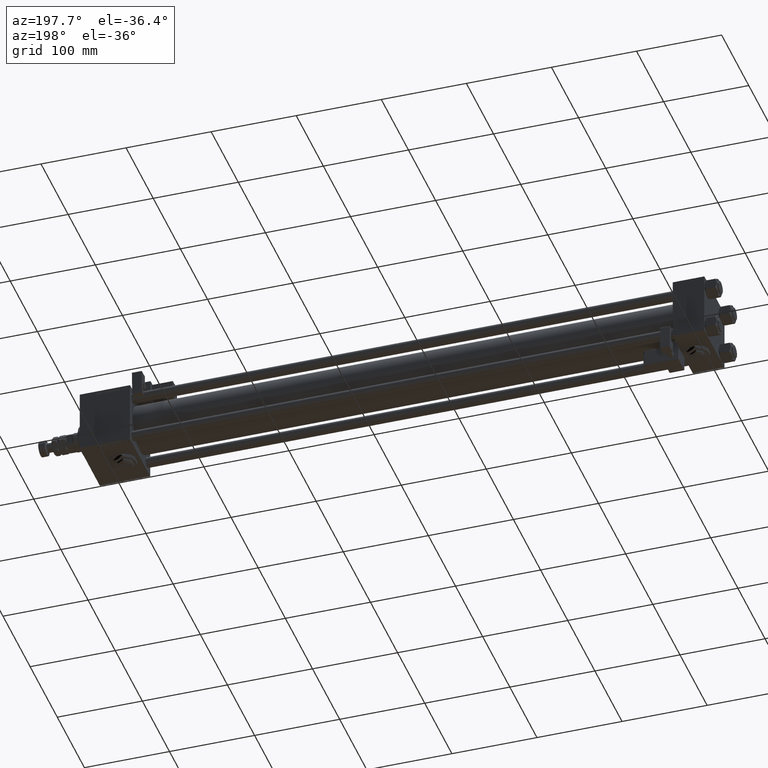
[diagram: clean part render]
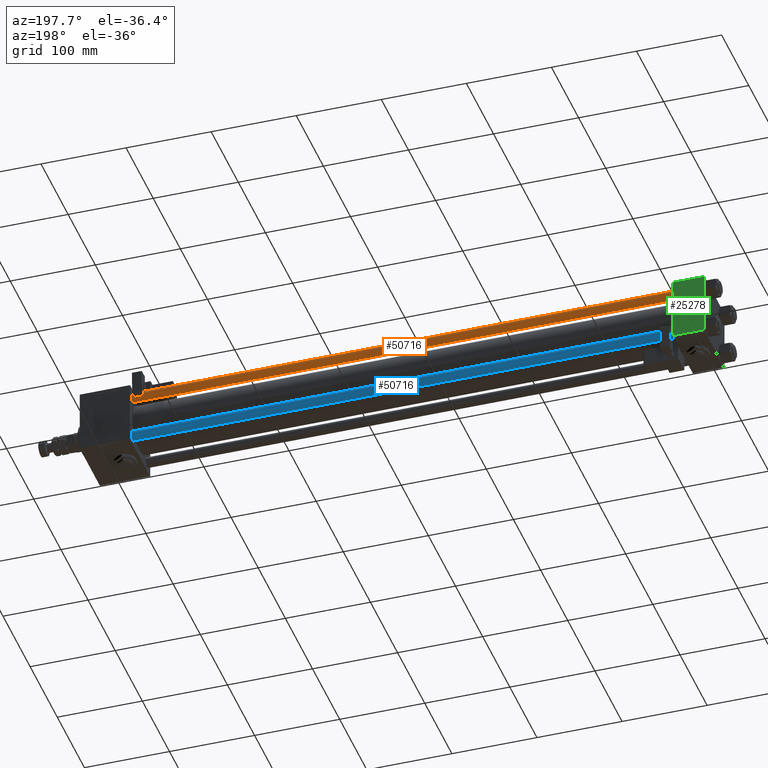
[diagram: same view with three faces highlighted in distinct colors, each labeled with its STEP entity id]
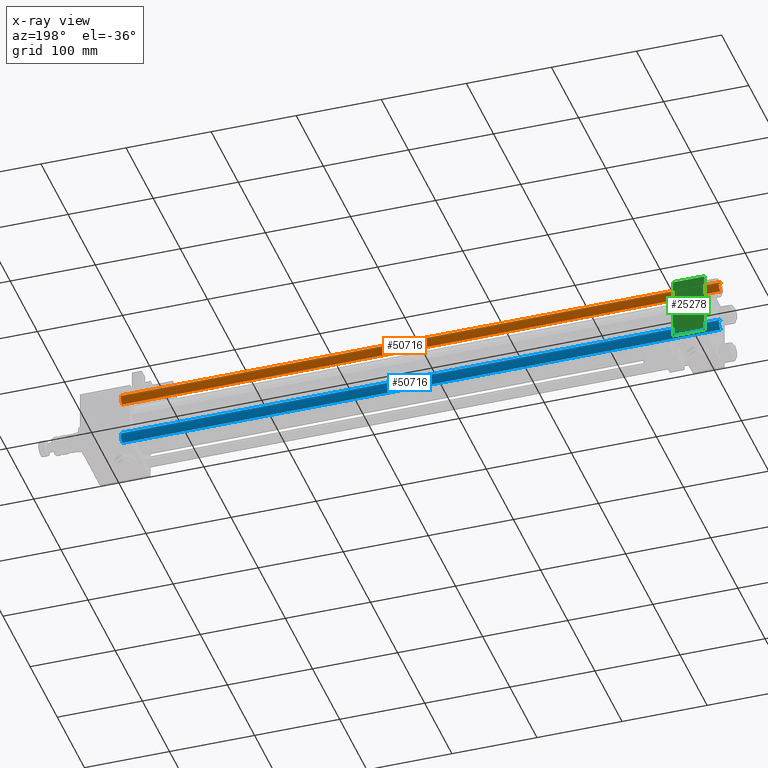
[diagram: x-ray of the same camera — body ghosted, the three highlighted faces saturated]
A machine part, auxiliary view with three faces highlighted in distinct colors.
The next image is the same camera in x-ray (body ghosted, the three faces saturated) — at least one of them is partly hidden behind the body in this view.
Their STEP definitions:

[orange] entity #50716 — the highlighted cylindrical surface (edge-blend (fillet) strip) has radius 6 mm, axis along (-1, 0, 0).
#1416 = FACE_OUTER_BOUND ( 'NONE', #23526, .T. ) ;
#2388 = ORIENTED_EDGE ( 'NONE', *, *, #24138, .F. ) ;
#2735 = EDGE_CURVE ( 'NONE', #6185, #37512, #21170, .T. ) ;
#5239 = VECTOR ( 'NONE', #47706, 1000.000000000000000 ) ;
#6185 = VERTEX_POINT ( 'NONE', #50404 ) ;
#7892 = LINE ( 'NONE', #47150, #5239 ) ;
#8731 = ORIENTED_EDGE ( 'NONE', *, *, #33666, .T. ) ;
#13368 = DIRECTION ( 'NONE',  ( -0.000000000000000000, -0.000000000000000000, -1.000000000000000000 ) ) ;
#13693 = AXIS2_PLACEMENT_3D ( 'NONE', #20240, #19958, #50405 ) ;
#17807 = EDGE_CURVE ( 'NONE', #37512, #49722, #26985, .T. ) ;
#19152 = CIRCLE ( 'NONE', #13693, 6.000000000000000888 ) ;
#19958 = DIRECTION ( 'NONE',  ( 0.000000000000000000, 0.000000000000000000, -1.000000000000000000 ) ) ;
#20240 = CARTESIAN_POINT ( 'NONE',  ( 0.000000000000000000, 0.000000000000000000, 703.5000000000000000 ) ) ;
#21170 = LINE ( 'NONE', #34553, #29497 ) ;
#22497 = DIRECTION ( 'NONE',  ( -1.000000000000000000, 0.000000000000000000, 0.000000000000000000 ) ) ;
#23526 = EDGE_LOOP ( 'NONE', ( #8731, #48034, #41986, #2388 ) ) ;
#24138 = EDGE_CURVE ( 'NONE', #29870, #49722, #7892, .T. ) ;
#26985 = CIRCLE ( 'NONE', #46959, 6.000000000000000888 ) ;
#29497 = VECTOR ( 'NONE', #46510, 1000.000000000000000 ) ;
#29870 = VERTEX_POINT ( 'NONE', #46878 ) ;
#33666 = EDGE_CURVE ( 'NONE', #29870, #6185, #19152, .T. ) ;
#34553 = CARTESIAN_POINT ( 'NONE',  ( 6.000000000000000888, 7.347880794884120722E-16, 704.0000000000000000 ) ) ;
#36421 = CARTESIAN_POINT ( 'NONE',  ( -6.000000000000000888, 0.000000000000000000, 0.4999999999998339106 ) ) ;
#37512 = VERTEX_POINT ( 'NONE', #43467 ) ;
#40400 = DIRECTION ( 'NONE',  ( -0.000000000000000000, -0.000000000000000000, 1.000000000000000000 ) ) ;
#41986 = ORIENTED_EDGE ( 'NONE', *, *, #17807, .T. ) ;
#43467 = CARTESIAN_POINT ( 'NONE',  ( 6.000000000000000888, 7.347880794884120722E-16, 0.4999999999998339106 ) ) ;
#44948 = CARTESIAN_POINT ( 'NONE',  ( 0.000000000000000000, 0.000000000000000000, 704.0000000000000000 ) ) ;
#46510 = DIRECTION ( 'NONE',  ( -0.000000000000000000, -0.000000000000000000, -1.000000000000000000 ) ) ;
#46653 = AXIS2_PLACEMENT_3D ( 'NONE', #44948, #13368, #22497 ) ;
#46878 = CARTESIAN_POINT ( 'NONE',  ( -6.000000000000000888, 0.000000000000000000, 703.5000000000000000 ) ) ;
#46959 = AXIS2_PLACEMENT_3D ( 'NONE', #48375, #40400, #48933 ) ;
#47150 = CARTESIAN_POINT ( 'NONE',  ( -6.000000000000000888, 0.000000000000000000, 704.0000000000000000 ) ) ;
#47706 = DIRECTION ( 'NONE',  ( -0.000000000000000000, -0.000000000000000000, -1.000000000000000000 ) ) ;
#48034 = ORIENTED_EDGE ( 'NONE', *, *, #2735, .T. ) ;
#48099 = CYLINDRICAL_SURFACE ( 'NONE', #46653, 6.000000000000000888 ) ;
#48375 = CARTESIAN_POINT ( 'NONE',  ( 0.000000000000000000, 0.000000000000000000, 0.4999999999998339106 ) ) ;
#48933 = DIRECTION ( 'NONE',  ( 1.000000000000000000, 0.000000000000000000, 0.000000000000000000 ) ) ;
#49722 = VERTEX_POINT ( 'NONE', #36421 ) ;
#50404 = CARTESIAN_POINT ( 'NONE',  ( 6.000000000000000888, 7.347880794884120722E-16, 703.5000000000000000 ) ) ;
#50405 = DIRECTION ( 'NONE',  ( 1.000000000000000000, 0.000000000000000000, 0.000000000000000000 ) ) ;
#50716 = ADVANCED_FACE ( 'NONE', ( #1416 ), #48099, .T. ) ;

[blue] entity #50716 — the highlighted cylindrical surface (edge-blend (fillet) strip) has radius 6 mm, axis along (1, -0, 0).
#1416 = FACE_OUTER_BOUND ( 'NONE', #23526, .T. ) ;
#2388 = ORIENTED_EDGE ( 'NONE', *, *, #24138, .F. ) ;
#2735 = EDGE_CURVE ( 'NONE', #6185, #37512, #21170, .T. ) ;
#5239 = VECTOR ( 'NONE', #47706, 1000.000000000000000 ) ;
#6185 = VERTEX_POINT ( 'NONE', #50404 ) ;
#7892 = LINE ( 'NONE', #47150, #5239 ) ;
#8731 = ORIENTED_EDGE ( 'NONE', *, *, #33666, .T. ) ;
#13368 = DIRECTION ( 'NONE',  ( -0.000000000000000000, -0.000000000000000000, -1.000000000000000000 ) ) ;
#13693 = AXIS2_PLACEMENT_3D ( 'NONE', #20240, #19958, #50405 ) ;
#17807 = EDGE_CURVE ( 'NONE', #37512, #49722, #26985, .T. ) ;
#19152 = CIRCLE ( 'NONE', #13693, 6.000000000000000888 ) ;
#19958 = DIRECTION ( 'NONE',  ( 0.000000000000000000, 0.000000000000000000, -1.000000000000000000 ) ) ;
#20240 = CARTESIAN_POINT ( 'NONE',  ( 0.000000000000000000, 0.000000000000000000, 703.5000000000000000 ) ) ;
#21170 = LINE ( 'NONE', #34553, #29497 ) ;
#22497 = DIRECTION ( 'NONE',  ( -1.000000000000000000, 0.000000000000000000, 0.000000000000000000 ) ) ;
#23526 = EDGE_LOOP ( 'NONE', ( #8731, #48034, #41986, #2388 ) ) ;
#24138 = EDGE_CURVE ( 'NONE', #29870, #49722, #7892, .T. ) ;
#26985 = CIRCLE ( 'NONE', #46959, 6.000000000000000888 ) ;
#29497 = VECTOR ( 'NONE', #46510, 1000.000000000000000 ) ;
#29870 = VERTEX_POINT ( 'NONE', #46878 ) ;
#33666 = EDGE_CURVE ( 'NONE', #29870, #6185, #19152, .T. ) ;
#34553 = CARTESIAN_POINT ( 'NONE',  ( 6.000000000000000888, 7.347880794884120722E-16, 704.0000000000000000 ) ) ;
#36421 = CARTESIAN_POINT ( 'NONE',  ( -6.000000000000000888, 0.000000000000000000, 0.4999999999998339106 ) ) ;
#37512 = VERTEX_POINT ( 'NONE', #43467 ) ;
#40400 = DIRECTION ( 'NONE',  ( -0.000000000000000000, -0.000000000000000000, 1.000000000000000000 ) ) ;
#41986 = ORIENTED_EDGE ( 'NONE', *, *, #17807, .T. ) ;
#43467 = CARTESIAN_POINT ( 'NONE',  ( 6.000000000000000888, 7.347880794884120722E-16, 0.4999999999998339106 ) ) ;
#44948 = CARTESIAN_POINT ( 'NONE',  ( 0.000000000000000000, 0.000000000000000000, 704.0000000000000000 ) ) ;
#46510 = DIRECTION ( 'NONE',  ( -0.000000000000000000, -0.000000000000000000, -1.000000000000000000 ) ) ;
#46653 = AXIS2_PLACEMENT_3D ( 'NONE', #44948, #13368, #22497 ) ;
#46878 = CARTESIAN_POINT ( 'NONE',  ( -6.000000000000000888, 0.000000000000000000, 703.5000000000000000 ) ) ;
#46959 = AXIS2_PLACEMENT_3D ( 'NONE', #48375, #40400, #48933 ) ;
#47150 = CARTESIAN_POINT ( 'NONE',  ( -6.000000000000000888, 0.000000000000000000, 704.0000000000000000 ) ) ;
#47706 = DIRECTION ( 'NONE',  ( -0.000000000000000000, -0.000000000000000000, -1.000000000000000000 ) ) ;
#48034 = ORIENTED_EDGE ( 'NONE', *, *, #2735, .T. ) ;
#48099 = CYLINDRICAL_SURFACE ( 'NONE', #46653, 6.000000000000000888 ) ;
#48375 = CARTESIAN_POINT ( 'NONE',  ( 0.000000000000000000, 0.000000000000000000, 0.4999999999998339106 ) ) ;
#48933 = DIRECTION ( 'NONE',  ( 1.000000000000000000, 0.000000000000000000, 0.000000000000000000 ) ) ;
#49722 = VERTEX_POINT ( 'NONE', #36421 ) ;
#50404 = CARTESIAN_POINT ( 'NONE',  ( 6.000000000000000888, 7.347880794884120722E-16, 703.5000000000000000 ) ) ;
#50405 = DIRECTION ( 'NONE',  ( 1.000000000000000000, 0.000000000000000000, 0.000000000000000000 ) ) ;
#50716 = ADVANCED_FACE ( 'NONE', ( #1416 ), #48099, .T. ) ;

[green] entity #25278 — the highlighted planar face has unit normal (0, 1, 0).
#387 = LINE ( 'NONE', #4665, #2499 ) ;
#436 = LINE ( 'NONE', #719, #22471 ) ;
#719 = CARTESIAN_POINT ( 'NONE',  ( 37.00000000000000000, 37.49999999999999289, 37.00000000000000000 ) ) ;
#2499 = VECTOR ( 'NONE', #39669, 1000.000000000000000 ) ;
#3176 = FACE_OUTER_BOUND ( 'NONE', #24914, .T. ) ;
#4665 = CARTESIAN_POINT ( 'NONE',  ( 37.00000000000000000, 37.49999999999999289, -36.99999999999998579 ) ) ;
#4803 = DIRECTION ( 'NONE',  ( 0.000000000000000000, 0.000000000000000000, -1.000000000000000000 ) ) ;
#6414 = VECTOR ( 'NONE', #4803, 1000.000000000000000 ) ;
#7078 = CARTESIAN_POINT ( 'NONE',  ( 37.00000000000000000, 37.49999999999999289, -36.99999999999998579 ) ) ;
#7101 = DIRECTION ( 'NONE',  ( 0.000000000000000000, 0.000000000000000000, -1.000000000000000000 ) ) ;
#12527 = AXIS2_PLACEMENT_3D ( 'NONE', #29347, #45575, #15959 ) ;
#15589 = VERTEX_POINT ( 'NONE', #19519 ) ;
#15959 = DIRECTION ( 'NONE',  ( 0.000000000000000000, -0.000000000000000000, 1.000000000000000000 ) ) ;
#17033 = LINE ( 'NONE', #34423, #6414 ) ;
#18571 = EDGE_CURVE ( 'NONE', #31137, #28338, #436, .T. ) ;
#19519 = CARTESIAN_POINT ( 'NONE',  ( 0.000000000000000000, 37.49999999999999289, -36.99999999999998579 ) ) ;
#20471 = CARTESIAN_POINT ( 'NONE',  ( 37.00000000000000000, 37.49999999999999289, 37.50000000000000000 ) ) ;
#22471 = VECTOR ( 'NONE', #52510, 1000.000000000000000 ) ;
#23236 = EDGE_CURVE ( 'NONE', #48403, #15589, #387, .T. ) ;
#24914 = EDGE_LOOP ( 'NONE', ( #52601, #45919, #31425, #32557 ) ) ;
#25278 = ADVANCED_FACE ( 'NONE', ( #3176 ), #42151, .T. ) ;
#28338 = VERTEX_POINT ( 'NONE', #36162 ) ;
#29347 = CARTESIAN_POINT ( 'NONE',  ( 37.00000000000000000, 37.49999999999999289, 37.50000000000000000 ) ) ;
#29592 = EDGE_CURVE ( 'NONE', #31137, #15589, #17033, .T. ) ;
#31137 = VERTEX_POINT ( 'NONE', #55080 ) ;
#31425 = ORIENTED_EDGE ( 'NONE', *, *, #29592, .F. ) ;
#32557 = ORIENTED_EDGE ( 'NONE', *, *, #18571, .T. ) ;
#34423 = CARTESIAN_POINT ( 'NONE',  ( 0.000000000000000000, 37.49999999999999289, 37.50000000000000000 ) ) ;
#36162 = CARTESIAN_POINT ( 'NONE',  ( 37.00000000000000000, 37.49999999999999289, 37.00000000000000000 ) ) ;
#38368 = EDGE_CURVE ( 'NONE', #28338, #48403, #42648, .T. ) ;
#39669 = DIRECTION ( 'NONE',  ( -1.000000000000000000, 0.000000000000000000, 0.000000000000000000 ) ) ;
#39924 = VECTOR ( 'NONE', #7101, 1000.000000000000000 ) ;
#42151 = PLANE ( 'NONE',  #12527 ) ;
#42648 = LINE ( 'NONE', #20471, #39924 ) ;
#45575 = DIRECTION ( 'NONE',  ( -0.000000000000000000, 1.000000000000000000, 0.000000000000000000 ) ) ;
#45919 = ORIENTED_EDGE ( 'NONE', *, *, #23236, .T. ) ;
#48403 = VERTEX_POINT ( 'NONE', #7078 ) ;
#52510 = DIRECTION ( 'NONE',  ( 1.000000000000000000, 0.000000000000000000, 0.000000000000000000 ) ) ;
#52601 = ORIENTED_EDGE ( 'NONE', *, *, #38368, .T. ) ;
#55080 = CARTESIAN_POINT ( 'NONE',  ( 0.000000000000000000, 37.49999999999999289, 37.00000000000000000 ) ) ;